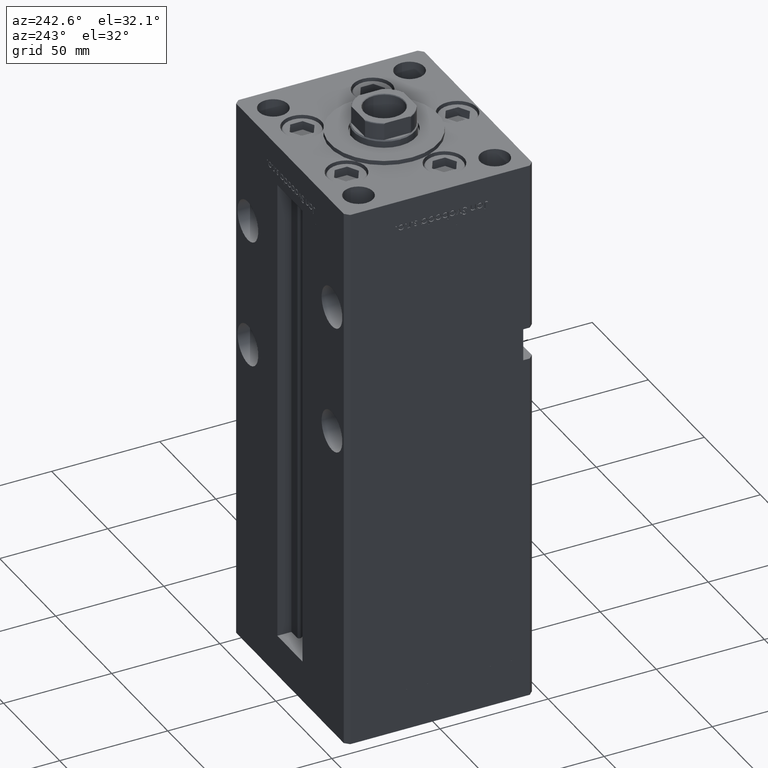
[diagram: clean part render]
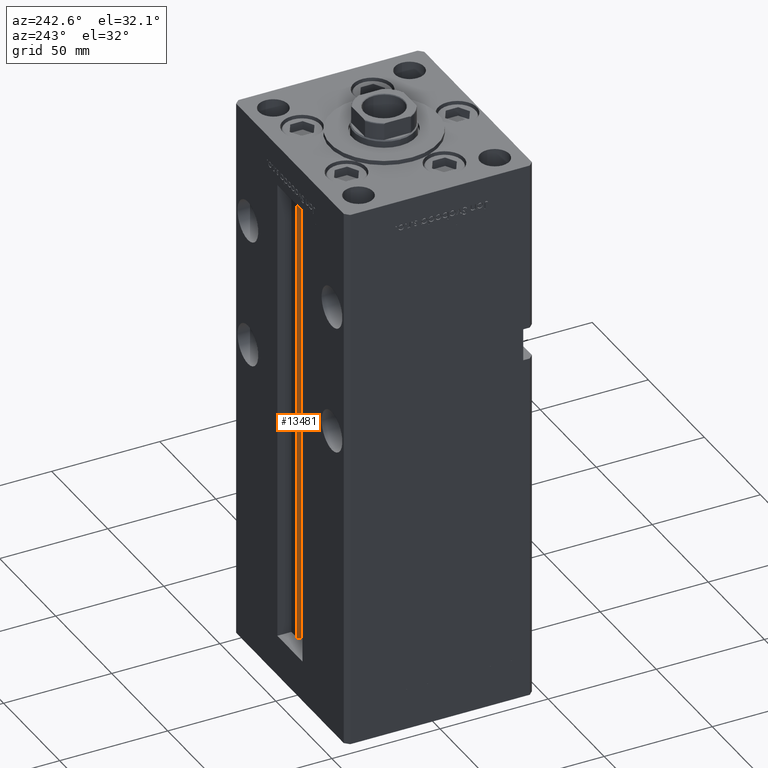
[diagram: same view with one face highlighted and labeled with its STEP entity id]
A machine part, auxiliary view. The second image highlights one B-rep face of the part: STEP entity #13481.
In plain terms, the highlighted cylindrical surface (edge-blend (fillet) strip) has radius 0.9333 mm, axis along (0, 0, 1).
Its self-contained STEP definition (entity closure, byte-faithful):
#1706 = CARTESIAN_POINT ( 'NONE',  ( 6.183333333333996151, 37.00000000000000000, 0.000000000000000000 ) ) ;
#4451 = CARTESIAN_POINT ( 'NONE',  ( 6.183333333333996151, 36.06666666666599497, 218.5000000000000000 ) ) ;
#5618 = VECTOR ( 'NONE', #51767, 1000.000000000000000 ) ;
#8513 = FACE_OUTER_BOUND ( 'NONE', #33581, .T. ) ;
#11700 = CIRCLE ( 'NONE', #32360, 0.9333333333339999260 ) ;
#13073 = DIRECTION ( 'NONE',  ( 1.000000000000000000, 0.000000000000000000, 0.000000000000000000 ) ) ;
#13481 = ADVANCED_FACE ( 'NONE', ( #8513 ), #28984, .T. ) ;
#15375 = VERTEX_POINT ( 'NONE', #37439 ) ;
#15720 = EDGE_CURVE ( 'NONE', #39001, #52782, #11700, .T. ) ;
#15988 = CARTESIAN_POINT ( 'NONE',  ( 5.375042956467946276, 35.59999999999899245, 218.5000000000000000 ) ) ;
#16187 = DIRECTION ( 'NONE',  ( 1.000000000000000000, 0.000000000000000000, 0.000000000000000000 ) ) ;
#16324 = DIRECTION ( 'NONE',  ( -0.000000000000000000, -0.000000000000000000, 1.000000000000000000 ) ) ;
#19102 = DIRECTION ( 'NONE',  ( 0.000000000000000000, 0.000000000000000000, -1.000000000000000000 ) ) ;
#20237 = CARTESIAN_POINT ( 'NONE',  ( 6.183333333333996151, 36.06666666666599497, 0.000000000000000000 ) ) ;
#23215 = DIRECTION ( 'NONE',  ( -0.000000000000000000, -0.000000000000000000, 1.000000000000000000 ) ) ;
#24482 = CARTESIAN_POINT ( 'NONE',  ( 6.183333333333996151, 37.00000000000000000, 218.5000000000000000 ) ) ;
#24637 = EDGE_CURVE ( 'NONE', #15375, #34041, #39336, .T. ) ;
#24951 = CARTESIAN_POINT ( 'NONE',  ( 6.183333333333996151, 36.06666666666599497, 0.000000000000000000 ) ) ;
#28984 = CYLINDRICAL_SURFACE ( 'NONE', #44313, 0.9333333333339999260 ) ;
#32360 = AXIS2_PLACEMENT_3D ( 'NONE', #4451, #19102, #36074 ) ;
#33581 = EDGE_LOOP ( 'NONE', ( #37292, #40045, #44522, #46498 ) ) ;
#34041 = VERTEX_POINT ( 'NONE', #1706 ) ;
#35084 = CARTESIAN_POINT ( 'NONE',  ( 5.375042956467944499, 35.59999999999899245, 0.000000000000000000 ) ) ;
#36074 = DIRECTION ( 'NONE',  ( 1.000000000000000000, 0.000000000000000000, 0.000000000000000000 ) ) ;
#36662 = LINE ( 'NONE', #48517, #45998 ) ;
#37292 = ORIENTED_EDGE ( 'NONE', *, *, #49423, .F. ) ;
#37439 = CARTESIAN_POINT ( 'NONE',  ( 5.375042956467944499, 35.59999999999899245, 0.000000000000000000 ) ) ;
#38582 = LINE ( 'NONE', #35084, #5618 ) ;
#39001 = VERTEX_POINT ( 'NONE', #15988 ) ;
#39336 = CIRCLE ( 'NONE', #40315, 0.9333333333339999260 ) ;
#40045 = ORIENTED_EDGE ( 'NONE', *, *, #24637, .F. ) ;
#40315 = AXIS2_PLACEMENT_3D ( 'NONE', #20237, #53095, #16187 ) ;
#44313 = AXIS2_PLACEMENT_3D ( 'NONE', #24951, #16324, #13073 ) ;
#44522 = ORIENTED_EDGE ( 'NONE', *, *, #51119, .T. ) ;
#45998 = VECTOR ( 'NONE', #23215, 1000.000000000000000 ) ;
#46498 = ORIENTED_EDGE ( 'NONE', *, *, #15720, .T. ) ;
#48517 = CARTESIAN_POINT ( 'NONE',  ( 6.183333333333996151, 37.00000000000000000, 0.000000000000000000 ) ) ;
#49423 = EDGE_CURVE ( 'NONE', #34041, #52782, #36662, .T. ) ;
#51119 = EDGE_CURVE ( 'NONE', #15375, #39001, #38582, .T. ) ;
#51767 = DIRECTION ( 'NONE',  ( -0.000000000000000000, -0.000000000000000000, 1.000000000000000000 ) ) ;
#52782 = VERTEX_POINT ( 'NONE', #24482 ) ;
#53095 = DIRECTION ( 'NONE',  ( -0.000000000000000000, -0.000000000000000000, -1.000000000000000000 ) ) ;